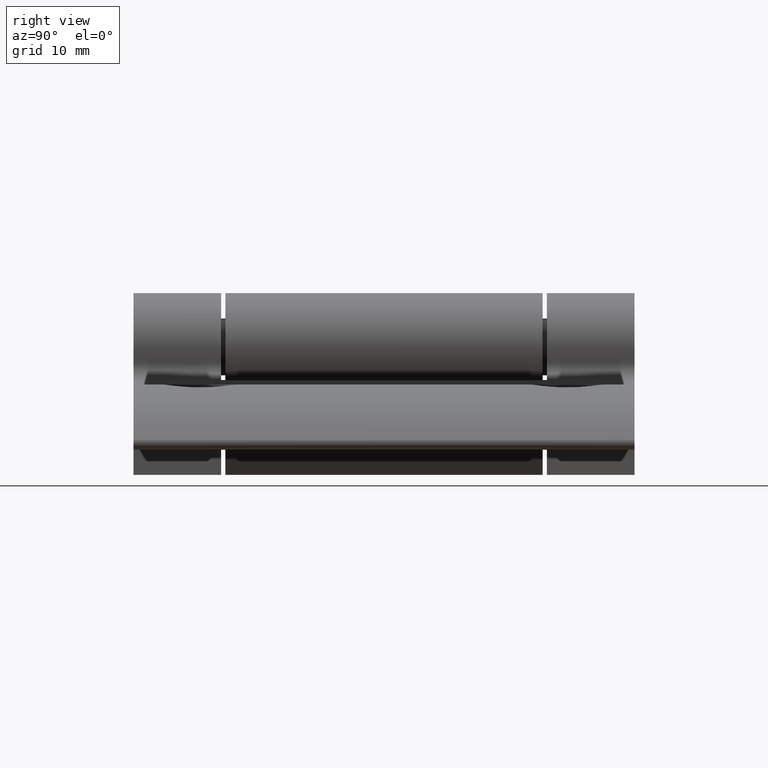
[diagram: clean part render]
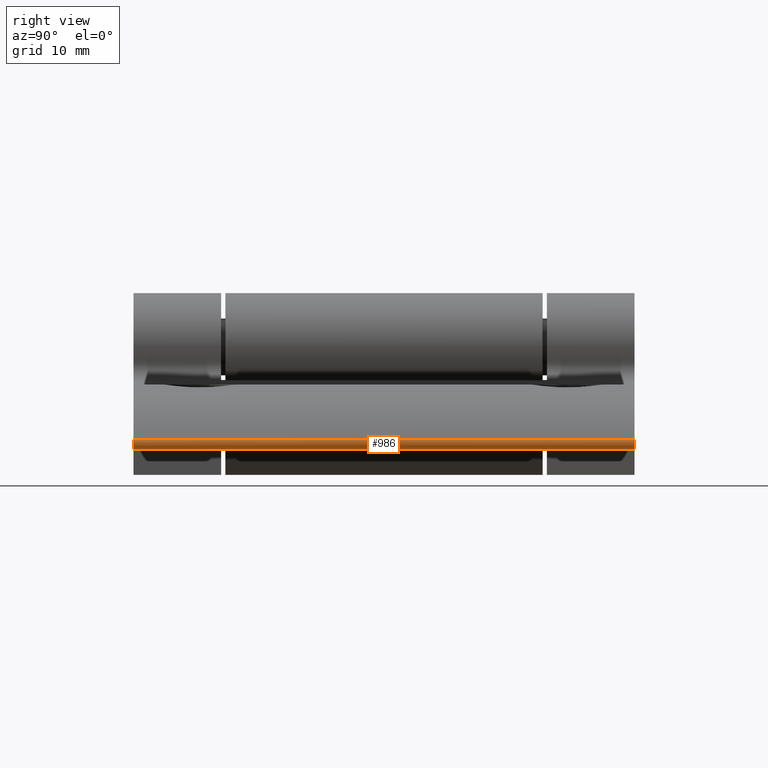
[diagram: same view with one face highlighted and labeled with its STEP entity id]
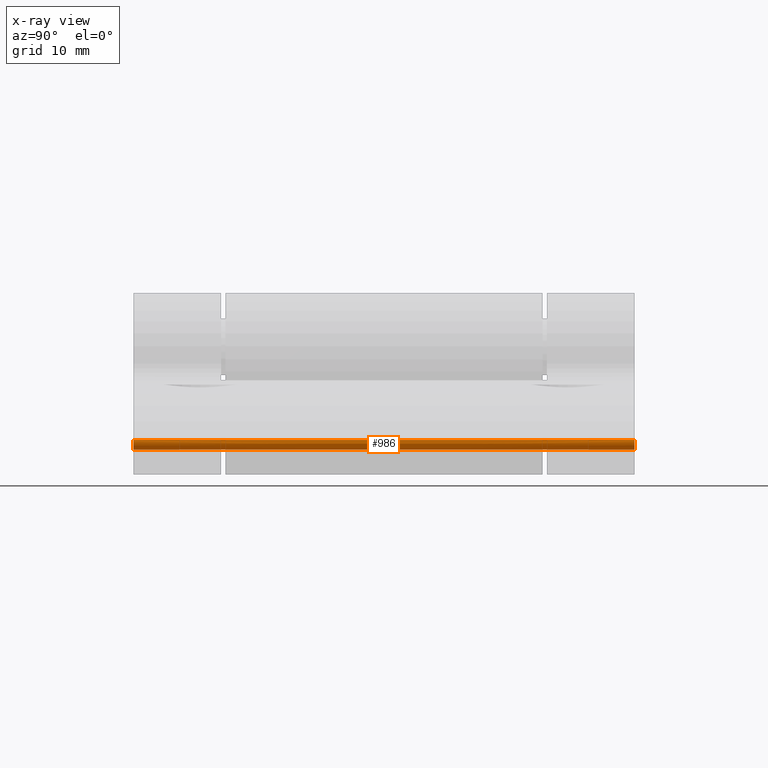
[diagram: x-ray of the same camera — body ghosted, the highlighted face saturated]
A machine part, right view. The second image highlights one B-rep face of the part: STEP entity #986.
The next image is the same camera in x-ray: the body ghosted, the highlighted face saturated — about 0% of this face is hidden behind the body in this view.
In plain terms, the highlighted face is a freeform B-spline surface patch.
Its self-contained STEP definition (entity closure, byte-faithful):
#37=B_SPLINE_SURFACE_WITH_KNOTS('',3,3,((#1700,#1701,#1702,#1703),(#1704,
#1705,#1706,#1707),(#1708,#1709,#1710,#1711),(#1712,#1713,#1714,#1715),
(#1716,#1717,#1718,#1719),(#1720,#1721,#1722,#1723)),.UNSPECIFIED.,.F.,
 .F.,.F.,(4,1,1,4),(4,4),(0.,0.285714285714286,0.571428571428571,1.),(0.,
6.),.UNSPECIFIED.);
#75=B_SPLINE_CURVE_WITH_KNOTS('',3,(#1726,#1727,#1728,#1729,#1730,#1731),
 .UNSPECIFIED.,.F.,.F.,(4,1,1,4),(0.228202346334161,0.285714285714286,0.571428571428571,
1.),.UNSPECIFIED.);
#76=B_SPLINE_CURVE_WITH_KNOTS('',3,(#1733,#1734,#1735,#1736),
 .UNSPECIFIED.,.F.,.F.,(4,4),(-6.,0.),.UNSPECIFIED.);
#77=B_SPLINE_CURVE_WITH_KNOTS('',3,(#1738,#1739,#1740,#1741,#1742,#1743),
 .UNSPECIFIED.,.F.,.F.,(4,1,1,4),(-1.,-0.571428571428571,-0.285714285714286,
-0.228202346334161),.UNSPECIFIED.);
#78=B_SPLINE_CURVE_WITH_KNOTS('',3,(#1745,#1746,#1747,#1748),
 .UNSPECIFIED.,.F.,.F.,(4,4),(-0.228202346334161,0.),.UNSPECIFIED.);
#79=B_SPLINE_CURVE_WITH_KNOTS('',3,(#1750,#1751,#1752,#1753),
 .UNSPECIFIED.,.F.,.F.,(4,4),(0.,6.),.UNSPECIFIED.);
#80=B_SPLINE_CURVE_WITH_KNOTS('',3,(#1754,#1755,#1756,#1757),
 .UNSPECIFIED.,.F.,.F.,(4,4),(0.,0.228202346334161),.UNSPECIFIED.);
#127=FACE_OUTER_BOUND('',#178,.T.);
#178=EDGE_LOOP('',(#786,#787,#788,#789,#790,#791));
#469=VERTEX_POINT('',#1724);
#470=VERTEX_POINT('',#1725);
#471=VERTEX_POINT('',#1732);
#472=VERTEX_POINT('',#1737);
#473=VERTEX_POINT('',#1744);
#474=VERTEX_POINT('',#1749);
#593=EDGE_CURVE('',#469,#470,#75,.T.);
#594=EDGE_CURVE('',#470,#471,#76,.T.);
#595=EDGE_CURVE('',#471,#472,#77,.T.);
#596=EDGE_CURVE('',#472,#473,#78,.T.);
#597=EDGE_CURVE('',#473,#474,#79,.T.);
#598=EDGE_CURVE('',#474,#469,#80,.T.);
#786=ORIENTED_EDGE('',*,*,#593,.T.);
#787=ORIENTED_EDGE('',*,*,#594,.T.);
#788=ORIENTED_EDGE('',*,*,#595,.T.);
#789=ORIENTED_EDGE('',*,*,#596,.T.);
#790=ORIENTED_EDGE('',*,*,#597,.T.);
#791=ORIENTED_EDGE('',*,*,#598,.T.);
#986=ADVANCED_FACE('',(#127),#37,.F.);
#1700=CARTESIAN_POINT('Ctrl Pts',(29.9140261061395,30.,-11.1248543994776));
#1701=CARTESIAN_POINT('Ctrl Pts',(29.9140261061395,10.,-11.1248543994776));
#1702=CARTESIAN_POINT('Ctrl Pts',(29.9140261061395,-10.,-11.1248543994776));
#1703=CARTESIAN_POINT('Ctrl Pts',(29.9140261061395,-30.,-11.1248543994776));
#1704=CARTESIAN_POINT('Ctrl Pts',(29.9844922625149,30.,-11.2655053740222));
#1705=CARTESIAN_POINT('Ctrl Pts',(29.9844922625149,10.,-11.2655053740222));
#1706=CARTESIAN_POINT('Ctrl Pts',(29.9844922625149,-10.,-11.2655053740222));
#1707=CARTESIAN_POINT('Ctrl Pts',(29.9844922625149,-30.,-11.2655053740222));
#1708=CARTESIAN_POINT('Ctrl Pts',(30.0407678261266,30.,-11.5879366357629));
#1709=CARTESIAN_POINT('Ctrl Pts',(30.0407678261266,9.99999999999996,-11.5879366357629));
#1710=CARTESIAN_POINT('Ctrl Pts',(30.0407678261266,-9.99999999999996,-11.5879366357629));
#1711=CARTESIAN_POINT('Ctrl Pts',(30.0407678261266,-30.,-11.5879366357629));
#1712=CARTESIAN_POINT('Ctrl Pts',(29.8135945585851,30.,-12.116695867367));
#1713=CARTESIAN_POINT('Ctrl Pts',(29.8135945585851,10.,-12.116695867367));
#1714=CARTESIAN_POINT('Ctrl Pts',(29.8135945585851,-10.,-12.116695867367));
#1715=CARTESIAN_POINT('Ctrl Pts',(29.8135945585851,-30.,-12.116695867367));
#1716=CARTESIAN_POINT('Ctrl Pts',(29.4243687454637,30.,-12.3));
#1717=CARTESIAN_POINT('Ctrl Pts',(29.4243687454637,9.99999999999996,-12.3));
#1718=CARTESIAN_POINT('Ctrl Pts',(29.4243687454637,-9.99999999999996,-12.3));
#1719=CARTESIAN_POINT('Ctrl Pts',(29.4243687454637,-30.,-12.3));
#1720=CARTESIAN_POINT('Ctrl Pts',(29.1883954511527,30.,-12.3));
#1721=CARTESIAN_POINT('Ctrl Pts',(29.1883954511527,10.,-12.3));
#1722=CARTESIAN_POINT('Ctrl Pts',(29.1883954511527,-10.,-12.3));
#1723=CARTESIAN_POINT('Ctrl Pts',(29.1883954511527,-30.,-12.3));
#1724=CARTESIAN_POINT('',(30.,-30.,-11.4883954511528));
#1725=CARTESIAN_POINT('',(29.1883954511527,-30.,-12.3));
#1726=CARTESIAN_POINT('Ctrl Pts',(29.9997267076304,-30.,-11.4881665296363));
#1727=CARTESIAN_POINT('Ctrl Pts',(29.9997618771173,-30.,-11.5197990420696));
#1728=CARTESIAN_POINT('Ctrl Pts',(29.9889263534492,-30.,-11.7086007330608));
#1729=CARTESIAN_POINT('Ctrl Pts',(29.8135945585851,-30.,-12.116695867367));
#1730=CARTESIAN_POINT('Ctrl Pts',(29.4243687454637,-30.,-12.3));
#1731=CARTESIAN_POINT('Ctrl Pts',(29.1883954511527,-30.,-12.3));
#1732=CARTESIAN_POINT('',(29.1883954511527,30.,-12.3));
#1733=CARTESIAN_POINT('Ctrl Pts',(29.1883954511527,-30.,-12.3));
#1734=CARTESIAN_POINT('Ctrl Pts',(29.1883954511527,-10.,-12.3));
#1735=CARTESIAN_POINT('Ctrl Pts',(29.1883954511527,10.,-12.3));
#1736=CARTESIAN_POINT('Ctrl Pts',(29.1883954511527,30.,-12.3));
#1737=CARTESIAN_POINT('',(30.,30.,-11.4883954511528));
#1738=CARTESIAN_POINT('Ctrl Pts',(29.1883954511527,30.,-12.3));
#1739=CARTESIAN_POINT('Ctrl Pts',(29.4243687454637,30.,-12.3));
#1740=CARTESIAN_POINT('Ctrl Pts',(29.8135945585851,30.,-12.116695867367));
#1741=CARTESIAN_POINT('Ctrl Pts',(29.9889263534492,30.,-11.7086007330608));
#1742=CARTESIAN_POINT('Ctrl Pts',(29.9997618771173,30.,-11.5197990420696));
#1743=CARTESIAN_POINT('Ctrl Pts',(29.9997267076304,30.,-11.4881665296363));
#1744=CARTESIAN_POINT('',(29.9140261061395,30.,-11.1248543994776));
#1745=CARTESIAN_POINT('Ctrl Pts',(29.9997267076304,30.,-11.4881665296363));
#1746=CARTESIAN_POINT('Ctrl Pts',(29.9995871581817,30.,-11.362651486403));
#1747=CARTESIAN_POINT('Ctrl Pts',(29.9703080039166,30.,-11.237193487896));
#1748=CARTESIAN_POINT('Ctrl Pts',(29.9140261061395,30.,-11.1248543994776));
#1749=CARTESIAN_POINT('',(29.9140261061395,-30.,-11.1248543994776));
#1750=CARTESIAN_POINT('Ctrl Pts',(29.9140261061395,30.,-11.1248543994776));
#1751=CARTESIAN_POINT('Ctrl Pts',(29.9140261061395,10.,-11.1248543994776));
#1752=CARTESIAN_POINT('Ctrl Pts',(29.9140261061395,-10.,-11.1248543994776));
#1753=CARTESIAN_POINT('Ctrl Pts',(29.9140261061395,-30.,-11.1248543994776));
#1754=CARTESIAN_POINT('Ctrl Pts',(29.9140261061395,-30.,-11.1248543994776));
#1755=CARTESIAN_POINT('Ctrl Pts',(29.9703080039166,-30.,-11.237193487896));
#1756=CARTESIAN_POINT('Ctrl Pts',(29.9995871581817,-30.,-11.362651486403));
#1757=CARTESIAN_POINT('Ctrl Pts',(29.9997267076304,-30.,-11.4881665296363));